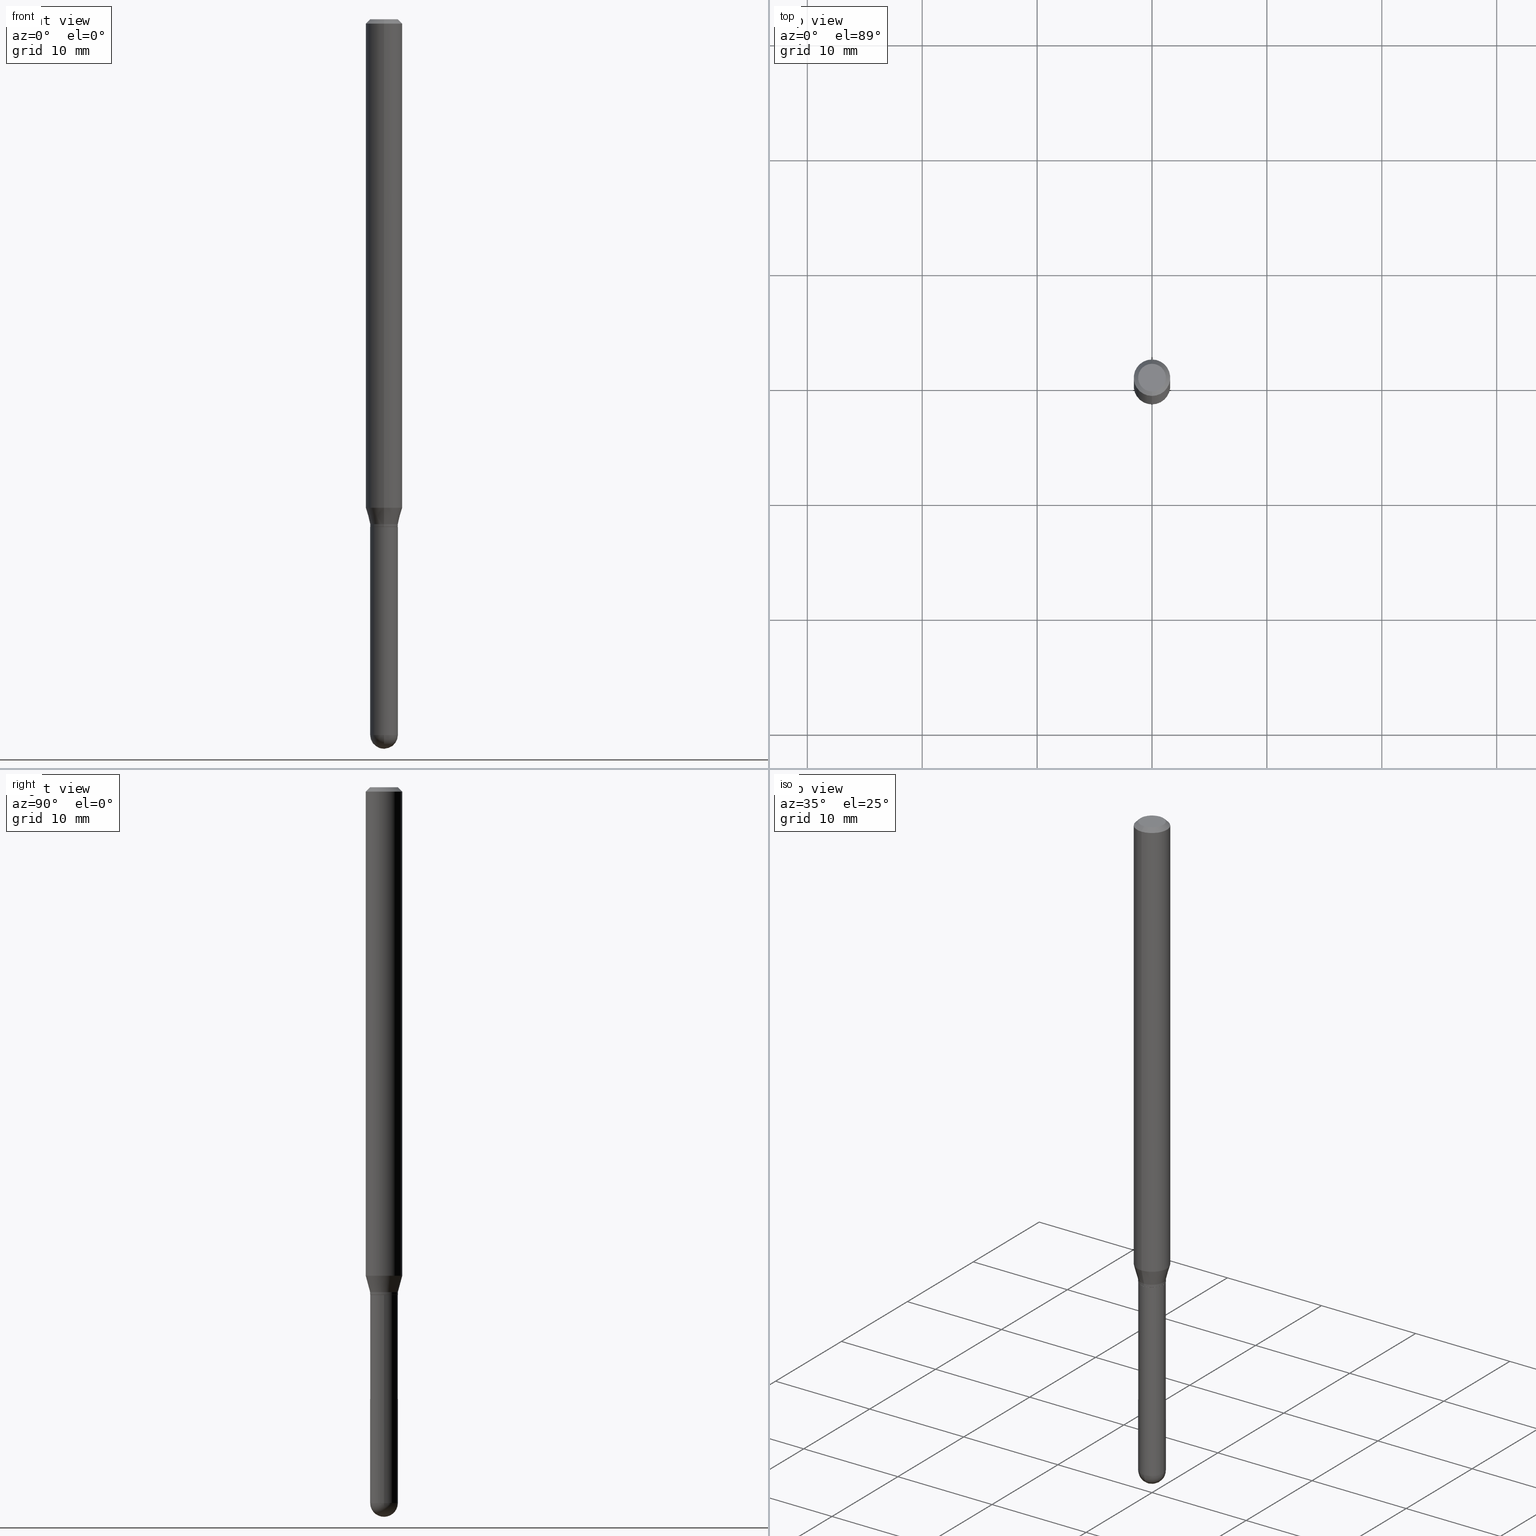
[diagram: canonical four-view strip — front | top / right | iso, engineering-drawing reading convention]
A machine part, canonical four-view strip (front | top / right | iso — engineering-drawing reading convention). The complete STEP part file that produces these views, byte-faithful:
ISO-10303-21;
HEADER;
FILE_DESCRIPTION (( 'STEP AP203' ),
    '1' );
FILE_NAME ('04504.STEP',
    '2024-03-08T20:13:57',
    ( '' ),
    ( '' ),
    'SwSTEP 2.0',
    'SolidWorks 2023',
    '' );
FILE_SCHEMA (( 'CONFIG_CONTROL_DESIGN' ));
ENDSEC;

DATA;
#1 = EDGE_LOOP ( 'NONE', ( #216, #71, #282, #239 ) ) ;
#2 = DIRECTION ( 'NONE',  ( -2.445468806185136597E-29, 3.491481338843145583E-15, 1.000000000000000000 ) ) ;
#3 = APPROVAL ( #443, 'UNSPECIFIED' ) ;
#4 = DIRECTION ( 'NONE',  ( -6.982962677686265133E-15, -1.000000000000000000, 5.751258934030070759E-15 ) ) ;
#5 = EDGE_LOOP ( 'NONE', ( #235, #9, #466, #125 ) ) ;
#6 = DIRECTION ( 'NONE',  ( 0.000000000000000000, 0.000000000000000000, 1.000000000000000000 ) ) ;
#7 = VECTOR ( 'NONE', #230, 39.37007874015748143 ) ;
#8 = ORIENTED_EDGE ( 'NONE', *, *, #407, .F. ) ;
#9 = ORIENTED_EDGE ( 'NONE', *, *, #79, .T. ) ;
#10 = ORIENTED_EDGE ( 'NONE', *, *, #421, .F. ) ;
#11 =( NAMED_UNIT ( * ) SI_UNIT ( $, .STERADIAN. ) SOLID_ANGLE_UNIT ( ) );
#12 = DIRECTION ( 'NONE',  ( -2.445468806185136597E-29, 3.491481338843145583E-15, 1.000000000000000000 ) ) ;
#13 = AXIS2_PLACEMENT_3D ( 'NONE', #234, #268, #419 ) ;
#14 = DIRECTION ( 'NONE',  ( 2.438088387897960049E-29, -3.491481338843145188E-15, -1.000000000000000000 ) ) ;
#15 = ORIENTED_EDGE ( 'NONE', *, *, #99, .F. ) ;
#16 = DIRECTION ( 'NONE',  ( -2.445468806185136597E-29, 3.491481338843145583E-15, 1.000000000000000000 ) ) ;
#17 = AXIS2_PLACEMENT_3D ( 'NONE', #379, #215, #417 ) ;
#18 = DATE_TIME_ROLE ( 'classification_date' ) ;
#19 = PERSON ( 'UNSPECIFIED', 'UNSPECIFIED', 'UNSPECIFIED', ('UNSPECIFIED'), ('UNSPECIFIED'), ('UNSPECIFIED') ) ;
#20 = PLANE ( 'NONE',  #346 ) ;
#21 = CC_DESIGN_DATE_AND_TIME_ASSIGNMENT ( #485, #18, ( #403 ) ) ;
#22 = FACE_OUTER_BOUND ( 'NONE', #501, .T. ) ;
#23 = CARTESIAN_POINT ( 'NONE',  ( -3.316907271900528910E-16, -0.04750000000000569045, -1.729999999999999760 ) ) ;
#24 = EDGE_LOOP ( 'NONE', ( #161, #253, #10, #8 ) ) ;
#25 = DIRECTION ( 'NONE',  ( -6.982962677686265922E-15, -1.000000000000000000, 3.483106191921935554E-15 ) ) ;
#26 = DIRECTION ( 'NONE',  ( 6.982962677686265922E-15, 1.000000000000000000, -5.751258934030028949E-15 ) ) ;
#27 = ORIENTED_EDGE ( 'NONE', *, *, #421, .T. ) ;
#28 = AXIS2_PLACEMENT_3D ( 'NONE', #75, #331, #342 ) ;
#29 = CARTESIAN_POINT ( 'NONE',  ( 0.000000000000000000, 0.000000000000000000, 0.000000000000000000 ) ) ;
#30 = ADVANCED_FACE ( 'NONE', ( #408 ), #445, .T. ) ;
#31 = CARTESIAN_POINT ( 'NONE',  ( 3.668196820181765152E-31, -5.237231157813794490E-17, -0.01500000000000006710 ) ) ;
#32 = VERTEX_POINT ( 'NONE', #52 ) ;
#33 = CARTESIAN_POINT ( 'NONE',  ( 0.04749999999999999362, -6.406868256777172111E-15, -1.740000000000000213 ) ) ;
#34 = DIRECTION ( 'NONE',  ( -2.445464546787832633E-29, 3.491487438542514721E-15, 1.000000000000000000 ) ) ;
#35 = VERTEX_POINT ( 'NONE', #370 ) ;
#36 = CARTESIAN_POINT ( 'NONE',  ( -3.281992458512119547E-16, -0.04700000000000607164, -1.739999999999999769 ) ) ;
#37 = VECTOR ( 'NONE', #333, 39.37007874015748854 ) ;
#38 = ORIENTED_EDGE ( 'NONE', *, *, #89, .T. ) ;
#39 = MANIFOLD_SOLID_BREP ( 'Body-Move/Copy2[1]', #311 ) ;
#40 = ADVANCED_FACE ( 'NONE', ( #450 ), #208, .T. ) ;
#41 = DIRECTION ( 'NONE',  ( -6.982962677686265922E-15, -1.000000000000000000, 3.491487438542514721E-15 ) ) ;
#42 = ORIENTED_EDGE ( 'NONE', *, *, #318, .F. ) ;
#43 = DATE_AND_TIME ( #201, #378 ) ;
#44 = EDGE_CURVE ( 'NONE', #35, #348, #289, .T. ) ;
#45 = ORIENTED_EDGE ( 'NONE', *, *, #453, .T. ) ;
#46 = APPROVAL_ROLE ( '' ) ;
#47 = AXIS2_PLACEMENT_3D ( 'NONE', #92, #132, #486 ) ;
#48 = EDGE_LOOP ( 'NONE', ( #319, #437, #334, #350 ) ) ;
#49 = COORDINATED_UNIVERSAL_TIME_OFFSET ( 5, 0, .BEHIND. ) ;
#50 = VERTEX_POINT ( 'NONE', #60 ) ;
#51 = MECHANICAL_CONTEXT ( 'NONE', #227, 'mechanical' ) ;
#52 = CARTESIAN_POINT ( 'NONE',  ( 3.316907271901575630E-16, 0.04749999999999143102, -2.452500000000000568 ) ) ;
#53 = CALENDAR_DATE ( 2024, 8, 3 ) ;
#54 = EDGE_CURVE ( 'NONE', #418, #156, #150, .T. ) ;
#55 = CONICAL_SURFACE ( 'NONE', #134, 0.06250000000000000000, 0.7853981633974483900 ) ;
#56 = CIRCLE ( 'NONE', #47, 0.04749999999999998668 ) ;
#57 = FACE_OUTER_BOUND ( 'NONE', #304, .T. ) ;
#58 = AXIS2_PLACEMENT_3D ( 'NONE', #469, #109, #306 ) ;
#59 = EDGE_CURVE ( 'NONE', #241, #375, #329, .T. ) ;
#60 = CARTESIAN_POINT ( 'NONE',  ( 3.357314426466885089E-16, 0.04699999999999391470, -1.740000000000000213 ) ) ;
#61 = ADVANCED_FACE ( 'NONE', ( #249 ), #152, .T. ) ;
#62 = FACE_OUTER_BOUND ( 'NONE', #144, .T. ) ;
#63 = DIRECTION ( 'NONE',  ( 1.000000000000000000, -6.982962677686280910E-15, 0.000000000000000000 ) ) ;
#64 = CIRCLE ( 'NONE', #240, 0.04749999999999999362 ) ;
#65 = VECTOR ( 'NONE', #221, 39.37007874015748143 ) ;
#66 = CARTESIAN_POINT ( 'NONE',  ( 0.000000000000000000, 0.000000000000000000, 0.000000000000000000 ) ) ;
#67 = ORIENTED_EDGE ( 'NONE', *, *, #275, .F. ) ;
#68 = EDGE_CURVE ( 'NONE', #315, #35, #96, .T. ) ;
#69 = DIRECTION ( 'NONE',  ( -4.937700262164674260E-15, -0.7071067811865632269, 0.7071067811865319186 ) ) ;
#70 = DIRECTION ( 'NONE',  ( -6.982962677686265133E-15, -1.000000000000000000, 3.491487438542514721E-15 ) ) ;
#71 = ORIENTED_EDGE ( 'NONE', *, *, #218, .F. ) ;
#72 = CONICAL_SURFACE ( 'NONE', #28, 0.04699999999999999317, 0.7853981633974739252 ) ;
#73 = CIRCLE ( 'NONE', #181, 0.04699999999999999317 ) ;
#74 = ADVANCED_FACE ( 'NONE', ( #410 ), #20, .F. ) ;
#75 = CARTESIAN_POINT ( 'NONE',  ( 4.255108311410829342E-29, -6.075188143063975551E-15, -1.739999999999999991 ) ) ;
#76 = ORIENTED_EDGE ( 'NONE', *, *, #458, .T. ) ;
#77 = DIRECTION ( 'NONE',  ( -6.982962677686266711E-15, -1.000000000000000000, 5.812442539711199378E-15 ) ) ;
#78 = LINE ( 'NONE', #229, #196 ) ;
#79 = EDGE_CURVE ( 'NONE', #50, #195, #490, .T. ) ;
#80 = CYLINDRICAL_SURFACE ( 'NONE', #404, 0.04750000000000000749 ) ;
#81 = CC_DESIGN_PERSON_AND_ORGANIZATION_ASSIGNMENT ( #364, #447, ( #403 ) ) ;
#82 = ORIENTED_EDGE ( 'NONE', *, *, #248, .F. ) ;
#83 =( LENGTH_UNIT ( ) NAMED_UNIT ( * ) SI_UNIT ( $, .METRE. ) );
#84 = CIRCLE ( 'NONE', #420, 0.04749999999999964667 ) ;
#85 = ORIENTED_EDGE ( 'NONE', *, *, #474, .T. ) ;
#86 = PERSON_AND_ORGANIZATION_ROLE ( 'design_supplier' ) ;
#87 = APPLICATION_CONTEXT ( 'configuration controlled 3d designs of mechanical parts and assemblies' ) ;
#88 = VERTEX_POINT ( 'NONE', #442 ) ;
#89 = EDGE_CURVE ( 'NONE', #354, #32, #56, .T. ) ;
#90 = ORIENTED_EDGE ( 'NONE', *, *, #142, .T. ) ;
#91 = ORIENTED_EDGE ( 'NONE', *, *, #373, .T. ) ;
#92 = CARTESIAN_POINT ( 'NONE',  ( 5.993450207295445537E-29, -8.568675055808764986E-15, -2.452500000000000124 ) ) ;
#93 = CALENDAR_DATE ( 2024, 8, 3 ) ;
#94 = DIRECTION ( 'NONE',  ( -7.105427357601001070E-15, -1.000000000000000000, 0.000000000000000000 ) ) ;
#95 = CC_DESIGN_DATE_AND_TIME_ASSIGNMENT ( #43, #194, ( #260 ) ) ;
#96 = CIRCLE ( 'NONE', #279, 0.06250000000000000000 ) ;
#97 = DIRECTION ( 'NONE',  ( -2.445464546787832633E-29, 3.491487438542514721E-15, 1.000000000000000000 ) ) ;
#98 = DIRECTION ( 'NONE',  ( 6.982962677686265922E-15, 1.000000000000000000, -3.491487438542514327E-15 ) ) ;
#99 = EDGE_CURVE ( 'NONE', #156, #32, #359, .T. ) ;
#100 = DIRECTION ( 'NONE',  ( 1.000000000000000000, -6.982962677686266711E-15, 4.876176775795934672E-29 ) ) ;
#101 = PERSON_AND_ORGANIZATION ( #19, #206 ) ;
#102 = CARTESIAN_POINT ( 'NONE',  ( 4.230653665942951296E-29, -6.040273268678550736E-15, -1.730000000000000204 ) ) ;
#103 = CIRCLE ( 'NONE', #167, 0.06250000000000000000 ) ;
#104 = VERTEX_POINT ( 'NONE', #203 ) ;
#105 = LOCAL_TIME ( 15, 13, 57.00000000000000000, #217 ) ;
#106 = CARTESIAN_POINT ( 'NONE',  ( 5.993450207295445537E-29, -8.568675055808764986E-15, -2.452500000000000124 ) ) ;
#107 = FACE_OUTER_BOUND ( 'NONE', #184, .T. ) ;
#108 = APPROVAL ( #323, 'UNSPECIFIED' ) ;
#109 = DIRECTION ( 'NONE',  ( -2.445464546787832633E-29, 3.491487438542514721E-15, 1.000000000000000000 ) ) ;
#110 = DIRECTION ( 'NONE',  ( 6.982962677686265922E-15, 1.000000000000000000, -3.483106191921935554E-15 ) ) ;
#111 = CARTESIAN_POINT ( 'NONE',  ( -3.316907271900951444E-16, -0.04749999999999964667, 1.658456533307682206E-16 ) ) ;
#112 = CARTESIAN_POINT ( 'NONE',  ( -3.375077994859875895E-16, -0.04750000000000855621, -2.452499999999999680 ) ) ;
#113 = CC_DESIGN_PERSON_AND_ORGANIZATION_ASSIGNMENT ( #435, #482, ( #260 ) ) ;
#114 = EDGE_LOOP ( 'NONE', ( #274, #191 ) ) ;
#115 = CARTESIAN_POINT ( 'NONE',  ( 0.000000000000000000, 0.000000000000000000, 0.000000000000000000 ) ) ;
#116 = ORIENTED_EDGE ( 'NONE', *, *, #434, .F. ) ;
#117 = AXIS2_PLACEMENT_3D ( 'NONE', #365, #16, #63 ) ;
#118 = VECTOR ( 'NONE', #265, 39.37007874015748143 ) ;
#119 = PERSON_AND_ORGANIZATION_ROLE ( 'creator' ) ;
#120 = LOCAL_TIME ( 15, 13, 57.00000000000000000, #326 ) ;
#121 = APPROVAL_PERSON_ORGANIZATION ( #130, #3, #46 ) ;
#122 = EDGE_LOOP ( 'NONE', ( #270, #438, #177, #146 ) ) ;
#123 = COORDINATED_UNIVERSAL_TIME_OFFSET ( 5, 0, .BEHIND. ) ;
#124 = EDGE_LOOP ( 'NONE', ( #309, #276, #162, #394 ) ) ;
#125 = ORIENTED_EDGE ( 'NONE', *, *, #474, .F. ) ;
#126 = DIRECTION ( 'NONE',  ( 1.000000000000000000, 0.000000000000000000, 0.000000000000000000 ) ) ;
#127 = AXIS2_PLACEMENT_3D ( 'NONE', #325, #97, #367 ) ;
#128 = CIRCLE ( 'NONE', #489, 0.04699999999999999317 ) ;
#129 = CARTESIAN_POINT ( 'NONE',  ( 3.339550858072895387E-16, 0.04699999999999391470, -1.740000000000000213 ) ) ;
#130 = PERSON_AND_ORGANIZATION ( #19, #206 ) ;
#131 = ADVANCED_FACE ( 'NONE', ( #62 ), #136, .T. ) ;
#132 = DIRECTION ( 'NONE',  ( 1.000000000000000000, -6.982962677686265922E-15, 4.883557194083112340E-29 ) ) ;
#133 = DIRECTION ( 'NONE',  ( -6.982962677686265133E-15, -1.000000000000000000, 5.751258934030070759E-15 ) ) ;
#134 = AXIS2_PLACEMENT_3D ( 'NONE', #255, #460, #186 ) ;
#135 = LOCAL_TIME ( 15, 13, 57.00000000000000000, #49 ) ;
#136 = CYLINDRICAL_SURFACE ( 'NONE', #452, 0.04749999999999964667 ) ;
#137 = PRODUCT_RELATED_PRODUCT_CATEGORY ( 'detail', '', ( #312 ) ) ;
#138 = DIRECTION ( 'NONE',  ( -6.982962677686265133E-15, -1.000000000000000000, 5.751258934030070759E-15 ) ) ;
#139 = DIRECTION ( 'NONE',  ( -2.445464546787832633E-29, 3.491487438542514327E-15, 1.000000000000000000 ) ) ;
#140 = CARTESIAN_POINT ( 'NONE',  ( 3.840629472727447874E-16, 0.04749999999999999362, -2.313455976474456035E-16 ) ) ;
#141 = CARTESIAN_POINT ( 'NONE',  ( -4.364351673553912750E-16, -0.06250000000000005551, -0.01499999999999984852 ) ) ;
#142 = EDGE_CURVE ( 'NONE', #354, #418, #393, .T. ) ;
#143 = CARTESIAN_POINT ( 'NONE',  ( 4.255115722762138620E-29, -6.075177529587074600E-15, -1.740000000000000213 ) ) ;
#144 = EDGE_LOOP ( 'NONE', ( #391, #424, #433, #67 ) ) ;
#145 = LINE ( 'NONE', #111, #336 ) ;
#146 = ORIENTED_EDGE ( 'NONE', *, *, #327, .F. ) ;
#147 = ADVANCED_FACE ( 'NONE', ( #57 ), #207, .F. ) ;
#148 = FACE_OUTER_BOUND ( 'NONE', #158, .T. ) ;
#149 = FACE_OUTER_BOUND ( 'NONE', #390, .T. ) ;
#150 = CIRCLE ( 'NONE', #117, 0.04750000000000000749 ) ;
#151 = VERTEX_POINT ( 'NONE', #328 ) ;
#152 = CONICAL_SURFACE ( 'NONE', #127, 0.04749999999999964667, 0.2617993877991505181 ) ;
#153 = AXIS2_PLACEMENT_3D ( 'NONE', #165, #6, #126 ) ;
#154 = CARTESIAN_POINT ( 'NONE',  ( 0.04750000000000000749, -3.316907271900977082E-16, 2.316183968503069432E-30 ) ) ;
#155 = FACE_OUTER_BOUND ( 'NONE', #198, .T. ) ;
#156 = VERTEX_POINT ( 'NONE', #406 ) ;
#157 = DIRECTION ( 'NONE',  ( -2.445468806185136597E-29, 3.491481338843145583E-15, 1.000000000000000000 ) ) ;
#158 = EDGE_LOOP ( 'NONE', ( #27, #388, #182, #259 ) ) ;
#159 = CIRCLE ( 'NONE', #446, 0.06250000000000000000 ) ;
#160 = APPROVAL_ROLE ( '' ) ;
#161 = ORIENTED_EDGE ( 'NONE', *, *, #59, .T. ) ;
#162 = ORIENTED_EDGE ( 'NONE', *, *, #407, .T. ) ;
#163 = EDGE_CURVE ( 'NONE', #457, #317, #64, .T. ) ;
#164 = ORIENTED_EDGE ( 'NONE', *, *, #434, .T. ) ;
#165 = CARTESIAN_POINT ( 'NONE',  ( 0.000000000000000000, 0.000000000000000000, 0.000000000000000000 ) ) ;
#166 = ADVANCED_FACE ( 'NONE', ( #149 ), #72, .T. ) ;
#167 = AXIS2_PLACEMENT_3D ( 'NONE', #237, #483, #412 ) ;
#168 = DIMENSIONAL_EXPONENTS ( 1.000000000000000000, 0.000000000000000000, 0.000000000000000000, 0.000000000000000000, 0.000000000000000000, 0.000000000000000000, 0.000000000000000000 ) ;
#169 = DIRECTION ( 'NONE',  ( 2.445464546787832633E-29, -3.491487438542514327E-15, -1.000000000000000000 ) ) ;
#170 = DIRECTION ( 'NONE',  ( -1.000000000000000000, 6.982962677686265922E-15, -4.876176775795935793E-29 ) ) ;
#171 = CC_DESIGN_PERSON_AND_ORGANIZATION_ASSIGNMENT ( #360, #119, ( #422 ) ) ;
#172 = CARTESIAN_POINT ( 'NONE',  ( 4.093754696892138762E-29, -5.844817140959110406E-15, -1.674019237886465783 ) ) ;
#173 = AXIS2_PLACEMENT_3D ( 'NONE', #444, #288, #94 ) ;
#174 = CARTESIAN_POINT ( 'NONE',  ( 5.993450207295445537E-29, -8.568675055808764986E-15, -2.452500000000000124 ) ) ;
#175 = DIRECTION ( 'NONE',  ( -2.445464546787832633E-29, 3.491487438542514721E-15, 1.000000000000000000 ) ) ;
#176 = FACE_OUTER_BOUND ( 'NONE', #48, .T. ) ;
#177 = ORIENTED_EDGE ( 'NONE', *, *, #44, .T. ) ;
#178 = ADVANCED_FACE ( 'NONE', ( #384 ), #498, .T. ) ;
#179 = AXIS2_PLACEMENT_3D ( 'NONE', #242, #12, #247 ) ;
#180 = CARTESIAN_POINT ( 'NONE',  ( 4.440892098501036369E-16, 0.06249999999999418521, -1.674019237886466227 ) ) ;
#181 = AXIS2_PLACEMENT_3D ( 'NONE', #301, #376, #77 ) ;
#182 = ORIENTED_EDGE ( 'NONE', *, *, #362, .F. ) ;
#183 = DIRECTION ( 'NONE',  ( 1.000000000000000000, -6.982962677686261977E-15, 0.000000000000000000 ) ) ;
#184 = EDGE_LOOP ( 'NONE', ( #436, #372, #471, #82 ) ) ;
#185 = DIRECTION ( 'NONE',  ( -6.982962677686265922E-15, -1.000000000000000000, 3.491487438542514721E-15 ) ) ;
#186 = DIRECTION ( 'NONE',  ( 6.982962677686265922E-15, 1.000000000000000000, -3.483106191921935554E-15 ) ) ;
#187 = DIRECTION ( 'NONE',  ( -2.445464546787832633E-29, 3.491487438542514721E-15, 1.000000000000000000 ) ) ;
#188 = ORIENTED_EDGE ( 'NONE', *, *, #492, .T. ) ;
#189 = AXIS2_PLACEMENT_3D ( 'NONE', #66, #175, #70 ) ;
#190 = CARTESIAN_POINT ( 'NONE',  ( 4.440892098500625669E-16, 0.06250000000000000000, -2.182179649089071701E-16 ) ) ;
#191 = ORIENTED_EDGE ( 'NONE', *, *, #163, .T. ) ;
#192 = CARTESIAN_POINT ( 'NONE',  ( 4.093754696892138762E-29, -5.844817140959110406E-15, -1.674019237886465783 ) ) ;
#193 = ORIENTED_EDGE ( 'NONE', *, *, #79, .F. ) ;
#194 = DATE_TIME_ROLE ( 'creation_date' ) ;
#195 = VERTEX_POINT ( 'NONE', #226 ) ;
#196 = VECTOR ( 'NONE', #456, 39.37007874015748143 ) ;
#197 = APPROVAL_PERSON_ORGANIZATION ( #101, #385, #297 ) ;
#198 = EDGE_LOOP ( 'NONE', ( #164, #91, #461, #220, #296 ) ) ;
#199 = ORIENTED_EDGE ( 'NONE', *, *, #142, .F. ) ;
#200 = ADVANCED_FACE ( 'NONE', ( #176 ), #300, .T. ) ;
#201 = CALENDAR_DATE ( 2024, 8, 3 ) ;
#202 = MANIFOLD_SOLID_BREP ( 'Body-Move/Copy2[2]', #231 ) ;
#203 = CARTESIAN_POINT ( 'NONE',  ( -3.316907271900519050E-16, -0.04750000000000561412, -1.739500000000000046 ) ) ;
#204 = APPROVAL_DATE_TIME ( #243, #3 ) ;
#205 = AXIS2_PLACEMENT_3D ( 'NONE', #338, #431, #4 ) ;
#206 = ORGANIZATION ( 'UNSPECIFIED', 'UNSPECIFIED', '' ) ;
#207 = PLANE ( 'NONE',  #294 ) ;
#208 = CYLINDRICAL_SURFACE ( 'NONE', #400, 0.04750000000000000749 ) ;
#209 = DIRECTION ( 'NONE',  ( -2.445464546787832633E-29, 3.491487438542514721E-15, 1.000000000000000000 ) ) ;
#210 = CARTESIAN_POINT ( 'NONE',  ( 4.255115722762138620E-29, -6.075177529587074600E-15, -1.740000000000000213 ) ) ;
#211 = AXIS2_PLACEMENT_3D ( 'NONE', #102, #252, #138 ) ;
#212 = AXIS2_PLACEMENT_3D ( 'NONE', #192, #347, #308 ) ;
#213 = DIRECTION ( 'NONE',  ( -2.445464546787832633E-29, 3.491487438542514721E-15, 1.000000000000000000 ) ) ;
#214 = DIRECTION ( 'NONE',  ( -2.445468806185136597E-29, 3.491481338843145583E-15, 1.000000000000000000 ) ) ;
#215 = DIRECTION ( 'NONE',  ( -2.445464546787832633E-29, 3.491487438542514721E-15, 1.000000000000000000 ) ) ;
#216 = ORIENTED_EDGE ( 'NONE', *, *, #307, .F. ) ;
#217 = COORDINATED_UNIVERSAL_TIME_OFFSET ( 5, 0, .BEHIND. ) ;
#218 = EDGE_CURVE ( 'NONE', #317, #457, #250, .T. ) ;
#219 = CARTESIAN_POINT ( 'NONE',  ( 3.375077994860450284E-16, 0.04749999999999964667, -1.658456533307682206E-16 ) ) ;
#220 = ORIENTED_EDGE ( 'NONE', *, *, #453, .F. ) ;
#221 = DIRECTION ( 'NONE',  ( -2.445464546787832633E-29, 3.491487438542514327E-15, 1.000000000000000000 ) ) ;
#222 = ADVANCED_FACE ( 'NONE', ( #107 ), #55, .T. ) ;
#223 = DIRECTION ( 'NONE',  ( -2.445464546787832633E-29, 3.491487438542514721E-15, 1.000000000000000000 ) ) ;
#224 = VECTOR ( 'NONE', #467, 39.37007874015748143 ) ;
#225 = EDGE_CURVE ( 'NONE', #375, #241, #84, .T. ) ;
#226 = CARTESIAN_POINT ( 'NONE',  ( 3.375077994860883172E-16, 0.04749999999999367922, -1.739500000000000712 ) ) ;
#227 = APPLICATION_CONTEXT ( 'configuration controlled 3d designs of mechanical parts and assemblies' ) ;
#228 = LINE ( 'NONE', #154, #7 ) ;
#229 = CARTESIAN_POINT ( 'NONE',  ( -4.287811248607203282E-16, -0.06250000000000005551, -0.01499999999999984852 ) ) ;
#230 = DIRECTION ( 'NONE',  ( -2.445468806185136877E-29, 3.491481338843145188E-15, 1.000000000000000000 ) ) ;
#231 = CLOSED_SHELL ( 'NONE', ( #131, #178, #222, #397, #256, #61, #392, #236, #74, #357, #166, #200 ) ) ;
#232 = ORIENTED_EDGE ( 'NONE', *, *, #269, .F. ) ;
#233 = VECTOR ( 'NONE', #69, 39.37007874015748143 ) ;
#234 = CARTESIAN_POINT ( 'NONE',  ( 5.997512247169047773E-29, -8.562857983512815004E-15, -2.452500000000000124 ) ) ;
#235 = ORIENTED_EDGE ( 'NONE', *, *, #405, .T. ) ;
#236 = ADVANCED_FACE ( 'NONE', ( #374 ), #479, .T. ) ;
#237 = CARTESIAN_POINT ( 'NONE',  ( 3.668196820181765152E-31, -5.237231157813794490E-17, -0.01500000000000006710 ) ) ;
#238 = ORIENTED_EDGE ( 'NONE', *, *, #54, .T. ) ;
#239 = ORIENTED_EDGE ( 'NONE', *, *, #327, .T. ) ;
#240 = AXIS2_PLACEMENT_3D ( 'NONE', #303, #34, #258 ) ;
#241 = VERTEX_POINT ( 'NONE', #23 ) ;
#242 = CARTESIAN_POINT ( 'NONE',  ( 5.997512247169047773E-29, -8.562857983512815004E-15, -2.452500000000000124 ) ) ;
#243 = DATE_AND_TIME ( #93, #120 ) ;
#244 = DIRECTION ( 'NONE',  ( -2.445468806185136597E-29, 3.491481338843145583E-15, 1.000000000000000000 ) ) ;
#245 = AXIS2_PLACEMENT_3D ( 'NONE', #210, #214, #478 ) ;
#246 = CARTESIAN_POINT ( 'NONE',  ( 4.230653665942951296E-29, -6.040273268678550736E-15, -1.730000000000000204 ) ) ;
#247 = DIRECTION ( 'NONE',  ( 1.000000000000000000, -6.982962677686280910E-15, 0.000000000000000000 ) ) ;
#248 = EDGE_CURVE ( 'NONE', #317, #504, #454, .T. ) ;
#249 = FACE_OUTER_BOUND ( 'NONE', #124, .T. ) ;
#250 = CIRCLE ( 'NONE', #17, 0.04749999999999999362 ) ;
#251 =( GEOMETRIC_REPRESENTATION_CONTEXT ( 3 ) GLOBAL_UNCERTAINTY_ASSIGNED_CONTEXT ( ( #341 ) ) GLOBAL_UNIT_ASSIGNED_CONTEXT ( ( #505, #425, #11 ) ) REPRESENTATION_CONTEXT ( 'NONE', 'WORKASPACE' ) );
#252 = DIRECTION ( 'NONE',  ( -2.445464546787832633E-29, 3.491487438542514721E-15, 1.000000000000000000 ) ) ;
#253 = ORIENTED_EDGE ( 'NONE', *, *, #284, .T. ) ;
#254 = CARTESIAN_POINT ( 'NONE',  ( 3.668196820181765152E-31, -5.237231157813794490E-17, -0.01500000000000006710 ) ) ;
#255 = CARTESIAN_POINT ( 'NONE',  ( 3.668196820181765152E-31, -5.237231157813794490E-17, -0.01500000000000006710 ) ) ;
#256 = ADVANCED_FACE ( 'NONE', ( #493 ), #387, .T. ) ;
#257 = LINE ( 'NONE', #190, #65 ) ;
#258 = DIRECTION ( 'NONE',  ( -6.982962677686266711E-15, -1.000000000000000000, 3.491487438542515115E-15 ) ) ;
#259 = ORIENTED_EDGE ( 'NONE', *, *, #44, .F. ) ;
#260 = PRODUCT_DEFINITION ( 'UNKNOWN', '', #422, #320 ) ;
#261 = CARTESIAN_POINT ( 'NONE',  ( 4.255108311410829342E-29, -6.075188143063975551E-15, -1.739999999999999991 ) ) ;
#262 = VECTOR ( 'NONE', #286, 39.37007874015748143 ) ;
#263 = CARTESIAN_POINT ( 'NONE',  ( 4.364351673553919652E-16, 0.06249999999999995143, -0.01500000000000028394 ) ) ;
#264 = CC_DESIGN_APPROVAL ( #385, ( #403 ) ) ;
#265 = DIRECTION ( 'NONE',  ( -2.445464546787832633E-29, 3.491487438542514327E-15, 1.000000000000000000 ) ) ;
#266 = CYLINDRICAL_SURFACE ( 'NONE', #272, 0.06250000000000000000 ) ;
#267 = VERTEX_POINT ( 'NONE', #423 ) ;
#268 = DIRECTION ( 'NONE',  ( -2.445468806185136597E-29, 3.491481338843145583E-15, 1.000000000000000000 ) ) ;
#269 = EDGE_CURVE ( 'NONE', #267, #475, #271, .T. ) ;
#270 = ORIENTED_EDGE ( 'NONE', *, *, #488, .F. ) ;
#271 = CIRCLE ( 'NONE', #369, 0.04749999999999999362 ) ;
#272 = AXIS2_PLACEMENT_3D ( 'NONE', #115, #187, #185 ) ;
#273 = PERSON_AND_ORGANIZATION ( #19, #206 ) ;
#274 = ORIENTED_EDGE ( 'NONE', *, *, #218, .T. ) ;
#275 = EDGE_CURVE ( 'NONE', #104, #241, #145, .T. ) ;
#276 = ORIENTED_EDGE ( 'NONE', *, *, #225, .T. ) ;
#277 = EDGE_CURVE ( 'NONE', #195, #375, #290, .T. ) ;
#278 = ORIENTED_EDGE ( 'NONE', *, *, #405, .F. ) ;
#279 = AXIS2_PLACEMENT_3D ( 'NONE', #172, #209, #487 ) ;
#280 = APPLICATION_PROTOCOL_DEFINITION ( 'international standard', 'config_control_design', 1994, #87 ) ;
#281 = LOCAL_TIME ( 15, 13, 57.00000000000000000, #305 ) ;
#282 = ORIENTED_EDGE ( 'NONE', *, *, #248, .T. ) ;
#283 = PERSON_AND_ORGANIZATION ( #19, #206 ) ;
#284 = EDGE_CURVE ( 'NONE', #375, #315, #371, .T. ) ;
#285 = DIRECTION ( 'NONE',  ( -2.445464546787832633E-29, 3.491487438542514721E-15, 1.000000000000000000 ) ) ;
#286 = DIRECTION ( 'NONE',  ( 5.024295867788190974E-15, 0.7071067811865681119, 0.7071067811865270336 ) ) ;
#287 = CIRCLE ( 'NONE', #58, 0.04749999999999964667 ) ;
#288 = DIRECTION ( 'NONE',  ( -1.000000000000000000, 7.105427357601001070E-15, -4.926315508542082329E-29 ) ) ;
#289 = LINE ( 'NONE', #321, #368 ) ;
#290 = LINE ( 'NONE', #219, #118 ) ;
#291 = SECURITY_CLASSIFICATION_LEVEL ( 'unclassified' ) ;
#292 = PRODUCT_DEFINITION_SHAPE ( 'NONE', 'NONE',  #260 ) ;
#293 = DIRECTION ( 'NONE',  ( -6.982962677686265922E-15, -1.000000000000000000, 3.491487438542514327E-15 ) ) ;
#294 = AXIS2_PLACEMENT_3D ( 'NONE', #363, #14, #170 ) ;
#295 = SPHERICAL_SURFACE ( 'NONE', #322, 0.04749999999999998668 ) ;
#296 = ORIENTED_EDGE ( 'NONE', *, *, #99, .T. ) ;
#297 = APPROVAL_ROLE ( '' ) ;
#298 = DIRECTION ( 'NONE',  ( -2.445464546787832633E-29, 3.491487438542514327E-15, 1.000000000000000000 ) ) ;
#299 = FACE_OUTER_BOUND ( 'NONE', #122, .T. ) ;
#300 = CYLINDRICAL_SURFACE ( 'NONE', #189, 0.04749999999999964667 ) ;
#301 = CARTESIAN_POINT ( 'NONE',  ( 4.255108311410829342E-29, -6.075188143063975551E-15, -1.739999999999999991 ) ) ;
#302 = VECTOR ( 'NONE', #344, 39.37007874015748143 ) ;
#303 = CARTESIAN_POINT ( 'NONE',  ( 1.601777916430087703E-45, -2.286922328069090659E-31, -6.549994431667617493E-17 ) ) ;
#304 = EDGE_LOOP ( 'NONE', ( #398, #352 ) ) ;
#305 = COORDINATED_UNIVERSAL_TIME_OFFSET ( 5, 0, .BEHIND. ) ;
#306 = DIRECTION ( 'NONE',  ( -6.982962677686265133E-15, -1.000000000000000000, 5.751258934030070759E-15 ) ) ;
#307 = EDGE_CURVE ( 'NONE', #457, #348, #78, .T. ) ;
#308 = DIRECTION ( 'NONE',  ( -6.982962677686265922E-15, -1.000000000000000000, 4.370956789862821150E-15 ) ) ;
#309 = ORIENTED_EDGE ( 'NONE', *, *, #284, .F. ) ;
#310 = DIRECTION ( 'NONE',  ( -6.982962677686266711E-15, -1.000000000000000000, 5.812442539711199378E-15 ) ) ;
#311 = CLOSED_SHELL ( 'NONE', ( #448, #30, #147, #314, #40 ) ) ;
#312 = PRODUCT ( '04504', '04504', '', ( #51 ) ) ;
#313 = AXIS2_PLACEMENT_3D ( 'NONE', #494, #139, #293 ) ;
#314 = ADVANCED_FACE ( 'NONE', ( #495 ), #295, .T. ) ;
#315 = VERTEX_POINT ( 'NONE', #180 ) ;
#316 = APPROVAL_DATE_TIME ( #440, #108 ) ;
#317 = VERTEX_POINT ( 'NONE', #140 ) ;
#318 = EDGE_CURVE ( 'NONE', #195, #104, #377, .T. ) ;
#319 = ORIENTED_EDGE ( 'NONE', *, *, #277, .F. ) ;
#320 = DESIGN_CONTEXT ( 'detailed design', #87, 'design' ) ;
#321 = CARTESIAN_POINT ( 'NONE',  ( -4.364351673553916201E-16, -0.06250000000000000000, 2.182179649089071701E-16 ) ) ;
#322 = AXIS2_PLACEMENT_3D ( 'NONE', #106, #415, #26 ) ;
#323 = APPROVAL_STATUS ( 'not_yet_approved' ) ;
#324 = CC_DESIGN_APPROVAL ( #3, ( #422 ) ) ;
#325 = CARTESIAN_POINT ( 'NONE',  ( 4.230653665942951296E-29, -6.040273268678550736E-15, -1.730000000000000204 ) ) ;
#326 = COORDINATED_UNIVERSAL_TIME_OFFSET ( 5, 0, .BEHIND. ) ;
#327 = EDGE_CURVE ( 'NONE', #504, #348, #103, .T. ) ;
#328 = CARTESIAN_POINT ( 'NONE',  ( -0.04750000000000000749, -6.981509957063897703E-15, -2.452500000000000124 ) ) ;
#329 = CIRCLE ( 'NONE', #402, 0.04749999999999964667 ) ;
#330 = DIRECTION ( 'NONE',  ( -1.000000000000000000, 6.982962677686265922E-15, -4.883557194083112340E-29 ) ) ;
#331 = DIRECTION ( 'NONE',  ( -2.445464546787832633E-29, 3.491487438542514721E-15, 1.000000000000000000 ) ) ;
#332 = PLANE ( 'NONE',  #313 ) ;
#333 = DIRECTION ( 'NONE',  ( 1.839019923739601893E-15, 0.2588190451025252359, 0.9659258262890670910 ) ) ;
#334 = ORIENTED_EDGE ( 'NONE', *, *, #275, .T. ) ;
#335 = AXIS2_PLACEMENT_3D ( 'NONE', #174, #330, #449 ) ;
#336 = VECTOR ( 'NONE', #298, 39.37007874015748143 ) ;
#337 = AXIS2_PLACEMENT_3D ( 'NONE', #29, #465, #41 ) ;
#338 = CARTESIAN_POINT ( 'NONE',  ( 4.253885579137435552E-29, -6.073442399344706559E-15, -1.739500000000000490 ) ) ;
#339 = ORIENTED_EDGE ( 'NONE', *, *, #54, .F. ) ;
#340 = CARTESIAN_POINT ( 'NONE',  ( -3.316907271900528910E-16, -0.04750000000000569045, -1.729999999999999760 ) ) ;
#341 = UNCERTAINTY_MEASURE_WITH_UNIT (LENGTH_MEASURE( 1.000000000000000082E-05 ), #505, 'distance_accuracy_value', 'NONE');
#342 = DIRECTION ( 'NONE',  ( -6.982962677686266711E-15, -1.000000000000000000, 5.812442539711199378E-15 ) ) ;
#343 = CARTESIAN_POINT ( 'NONE',  ( -3.773273898774340269E-16, -0.04749999999999999362, 1.003457090140932783E-16 ) ) ;
#344 = DIRECTION ( 'NONE',  ( 4.937700262164548042E-15, 0.7071067811865451302, -0.7071067811865499042 ) ) ;
#345 = DIRECTION ( 'NONE',  ( 1.000000000000000000, -6.982962677686280910E-15, 0.000000000000000000 ) ) ;
#346 = AXIS2_PLACEMENT_3D ( 'NONE', #480, #169, #98 ) ;
#347 = DIRECTION ( 'NONE',  ( -2.445464546787832633E-29, 3.491487438542514721E-15, 1.000000000000000000 ) ) ;
#348 = VERTEX_POINT ( 'NONE', #141 ) ;
#349 = CARTESIAN_POINT ( 'NONE',  ( 5.997512247169047773E-29, -8.562857983512815004E-15, -2.452500000000000124 ) ) ;
#350 = ORIENTED_EDGE ( 'NONE', *, *, #225, .F. ) ;
#351 = EDGE_CURVE ( 'NONE', #475, #267, #470, .T. ) ;
#352 = ORIENTED_EDGE ( 'NONE', *, *, #269, .T. ) ;
#353 = APPLICATION_PROTOCOL_DEFINITION ( 'international standard', 'config_control_design', 1994, #227 ) ;
#354 = VERTEX_POINT ( 'NONE', #396 ) ;
#355 = PERSON_AND_ORGANIZATION ( #19, #206 ) ;
#356 = EDGE_LOOP ( 'NONE', ( #496, #90, #472, #116 ) ) ;
#357 = ADVANCED_FACE ( 'NONE', ( #22 ), #332, .F. ) ;
#358 = CARTESIAN_POINT ( 'NONE',  ( 0.000000000000000000, 0.000000000000000000, 0.000000000000000000 ) ) ;
#359 = CIRCLE ( 'NONE', #179, 0.04750000000000000749 ) ;
#360 = PERSON_AND_ORGANIZATION ( #19, #206 ) ;
#361 = APPROVAL_PERSON_ORGANIZATION ( #283, #108, #160 ) ;
#362 = EDGE_CURVE ( 'NONE', #348, #504, #159, .T. ) ;
#363 = CARTESIAN_POINT ( 'NONE',  ( 3.316907271901401095E-16, 0.04749999999999392208, -1.740000000000000657 ) ) ;
#364 = PERSON_AND_ORGANIZATION ( #19, #206 ) ;
#365 = CARTESIAN_POINT ( 'NONE',  ( 5.997512247169047773E-29, -8.562857983512815004E-15, -2.452500000000000124 ) ) ;
#366 = CC_DESIGN_PERSON_AND_ORGANIZATION_ASSIGNMENT ( #273, #86, ( #422 ) ) ;
#367 = DIRECTION ( 'NONE',  ( -6.982962677686265133E-15, -1.000000000000000000, 5.751258934030070759E-15 ) ) ;
#368 = VECTOR ( 'NONE', #399, 39.37007874015748143 ) ;
#369 = AXIS2_PLACEMENT_3D ( 'NONE', #143, #506, #183 ) ;
#370 = CARTESIAN_POINT ( 'NONE',  ( -4.364351673553505007E-16, -0.06250000000000581479, -1.674019237886465561 ) ) ;
#371 = LINE ( 'NONE', #426, #37 ) ;
#372 = ORIENTED_EDGE ( 'NONE', *, *, #307, .T. ) ;
#373 = EDGE_CURVE ( 'NONE', #151, #267, #386, .T. ) ;
#374 = FACE_OUTER_BOUND ( 'NONE', #1, .T. ) ;
#375 = VERTEX_POINT ( 'NONE', #416 ) ;
#376 = DIRECTION ( 'NONE',  ( -2.445464546787832633E-29, 3.491487438542514721E-15, 1.000000000000000000 ) ) ;
#377 = CIRCLE ( 'NONE', #205, 0.04749999999999964667 ) ;
#378 = LOCAL_TIME ( 15, 13, 57.00000000000000000, #123 ) ;
#379 = CARTESIAN_POINT ( 'NONE',  ( 1.601777916430087703E-45, -2.286922328069090659E-31, -6.549994431667617493E-17 ) ) ;
#380 = LENGTH_MEASURE_WITH_UNIT ( LENGTH_MEASURE( 0.02539999999999999897 ), #83 );
#381 = DIRECTION ( 'NONE',  ( -6.982962677686266711E-15, -1.000000000000000000, 5.812442539711199378E-15 ) ) ;
#382 = EDGE_LOOP ( 'NONE', ( #507, #76, #238, #45, #232 ) ) ;
#383 = LINE ( 'NONE', #340, #481 ) ;
#384 = FACE_OUTER_BOUND ( 'NONE', #5, .T. ) ;
#385 = APPROVAL ( #491, 'UNSPECIFIED' ) ;
#386 = LINE ( 'NONE', #427, #224 ) ;
#387 = CONICAL_SURFACE ( 'NONE', #211, 0.04749999999999964667, 0.2617993877991505181 ) ;
#388 = ORIENTED_EDGE ( 'NONE', *, *, #488, .T. ) ;
#389 = CYLINDRICAL_SURFACE ( 'NONE', #337, 0.06250000000000000000 ) ;
#390 = EDGE_LOOP ( 'NONE', ( #193, #188, #85, #42 ) ) ;
#391 = ORIENTED_EDGE ( 'NONE', *, *, #477, .T. ) ;
#392 = ADVANCED_FACE ( 'NONE', ( #299 ), #266, .T. ) ;
#393 = CIRCLE ( 'NONE', #173, 0.04749999999999998668 ) ;
#394 = ORIENTED_EDGE ( 'NONE', *, *, #68, .F. ) ;
#395 = AXIS2_PLACEMENT_3D ( 'NONE', #349, #157, #345 ) ;
#396 = CARTESIAN_POINT ( 'NONE',  ( 6.111640995526040935E-29, -8.731611883255839934E-15, -2.500000000000000000 ) ) ;
#397 = ADVANCED_FACE ( 'NONE', ( #148 ), #389, .T. ) ;
#398 = ORIENTED_EDGE ( 'NONE', *, *, #351, .T. ) ;
#399 = DIRECTION ( 'NONE',  ( -2.445464546787832633E-29, 3.491487438542514327E-15, 1.000000000000000000 ) ) ;
#400 = AXIS2_PLACEMENT_3D ( 'NONE', #484, #244, #100 ) ;
#401 = DIRECTION ( 'NONE',  ( -6.982962677686265133E-15, -1.000000000000000000, 3.491487438542514721E-15 ) ) ;
#402 = AXIS2_PLACEMENT_3D ( 'NONE', #246, #213, #133 ) ;
#403 = SECURITY_CLASSIFICATION ( '', '', #291 ) ;
#404 = AXIS2_PLACEMENT_3D ( 'NONE', #509, #2, #512 ) ;
#405 = EDGE_CURVE ( 'NONE', #88, #50, #128, .T. ) ;
#406 = CARTESIAN_POINT ( 'NONE',  ( 0.04750000000000000749, -7.650708483740042707E-15, -2.452500000000000124 ) ) ;
#407 = EDGE_CURVE ( 'NONE', #241, #35, #383, .T. ) ;
#408 = FACE_OUTER_BOUND ( 'NONE', #356, .T. ) ;
#409 = CALENDAR_DATE ( 2024, 8, 3 ) ;
#410 = FACE_OUTER_BOUND ( 'NONE', #114, .T. ) ;
#411 = AXIS2_PLACEMENT_3D ( 'NONE', #500, #223, #381 ) ;
#412 = DIRECTION ( 'NONE',  ( -6.982962677686265922E-15, -1.000000000000000000, 3.483106191921935554E-15 ) ) ;
#413 = CARTESIAN_POINT ( 'NONE',  ( 4.230653665942951296E-29, -6.040273268678550736E-15, -1.730000000000000204 ) ) ;
#414 = DIRECTION ( 'NONE',  ( -2.445464546787832633E-29, 3.491487438542514721E-15, 1.000000000000000000 ) ) ;
#415 = DIRECTION ( 'NONE',  ( -1.000000000000000000, 6.982962677686265922E-15, -4.883557194083112340E-29 ) ) ;
#416 = CARTESIAN_POINT ( 'NONE',  ( 3.907985046680954347E-16, 0.04749999999999360289, -1.730000000000000426 ) ) ;
#417 = DIRECTION ( 'NONE',  ( -6.982962677686266711E-15, -1.000000000000000000, 3.491487438542515115E-15 ) ) ;
#418 = VERTEX_POINT ( 'NONE', #112 ) ;
#419 = DIRECTION ( 'NONE',  ( 1.000000000000000000, -6.982962677686280910E-15, 0.000000000000000000 ) ) ;
#420 = AXIS2_PLACEMENT_3D ( 'NONE', #413, #451, #503 ) ;
#421 = EDGE_CURVE ( 'NONE', #35, #315, #439, .T. ) ;
#422 = PRODUCT_DEFINITION_FORMATION_WITH_SPECIFIED_SOURCE ( 'ANY', '', #312, .NOT_KNOWN. ) ;
#423 = CARTESIAN_POINT ( 'NONE',  ( -0.04749999999999999362, -6.981509957063897703E-15, -1.740000000000000213 ) ) ;
#424 = ORIENTED_EDGE ( 'NONE', *, *, #277, .T. ) ;
#425 =( NAMED_UNIT ( * ) PLANE_ANGLE_UNIT ( ) SI_UNIT ( $, .RADIAN. ) );
#426 = CARTESIAN_POINT ( 'NONE',  ( 3.375077994860872818E-16, 0.04749999999999360289, -1.730000000000000426 ) ) ;
#427 = CARTESIAN_POINT ( 'NONE',  ( -0.04750000000000000749, 3.375077994860476415E-16, -2.336494167871080260E-30 ) ) ;
#428 = ORIENTED_EDGE ( 'NONE', *, *, #492, .F. ) ;
#429 = CARTESIAN_POINT ( 'NONE',  ( 4.440892098501038342E-16, 0.06249999999999995143, -0.01500000000000028394 ) ) ;
#430 = AXIS2_PLACEMENT_3D ( 'NONE', #31, #464, #110 ) ;
#431 = DIRECTION ( 'NONE',  ( -2.445464546787832633E-29, 3.491487438542514721E-15, 1.000000000000000000 ) ) ;
#432 = CIRCLE ( 'NONE', #395, 0.04750000000000000749 ) ;
#433 = ORIENTED_EDGE ( 'NONE', *, *, #59, .F. ) ;
#434 = EDGE_CURVE ( 'NONE', #32, #151, #432, .T. ) ;
#435 = PERSON_AND_ORGANIZATION ( #19, #206 ) ;
#436 = ORIENTED_EDGE ( 'NONE', *, *, #163, .F. ) ;
#437 = ORIENTED_EDGE ( 'NONE', *, *, #318, .T. ) ;
#438 = ORIENTED_EDGE ( 'NONE', *, *, #68, .T. ) ;
#439 = CIRCLE ( 'NONE', #212, 0.06250000000000000000 ) ;
#440 = DATE_AND_TIME ( #53, #135 ) ;
#441 = CC_DESIGN_PERSON_AND_ORGANIZATION_ASSIGNMENT ( #355, #476, ( #312 ) ) ;
#442 = CARTESIAN_POINT ( 'NONE',  ( -3.281992458512119547E-16, -0.04700000000000607164, -1.739999999999999769 ) ) ;
#443 = APPROVAL_STATUS ( 'not_yet_approved' ) ;
#444 = CARTESIAN_POINT ( 'NONE',  ( 5.993450207295445537E-29, -8.568675055808764986E-15, -2.452500000000000124 ) ) ;
#445 = SPHERICAL_SURFACE ( 'NONE', #335, 0.04749999999999998668 ) ;
#446 = AXIS2_PLACEMENT_3D ( 'NONE', #254, #414, #25 ) ;
#447 = PERSON_AND_ORGANIZATION_ROLE ( 'classification_officer' ) ;
#448 = ADVANCED_FACE ( 'NONE', ( #155 ), #80, .T. ) ;
#449 = DIRECTION ( 'NONE',  ( 6.982962677686265922E-15, 1.000000000000000000, -5.751258934030028949E-15 ) ) ;
#450 = FACE_OUTER_BOUND ( 'NONE', #382, .T. ) ;
#451 = DIRECTION ( 'NONE',  ( -2.445464546787832633E-29, 3.491487438542514721E-15, 1.000000000000000000 ) ) ;
#452 = AXIS2_PLACEMENT_3D ( 'NONE', #358, #285, #401 ) ;
#453 = EDGE_CURVE ( 'NONE', #156, #475, #228, .T. ) ;
#454 = LINE ( 'NONE', #263, #302 ) ;
#455 = CALENDAR_DATE ( 2024, 8, 3 ) ;
#456 = DIRECTION ( 'NONE',  ( -4.851104656540964275E-15, -0.7071067811865500152, -0.7071067811865450192 ) ) ;
#457 = VERTEX_POINT ( 'NONE', #343 ) ;
#458 = EDGE_CURVE ( 'NONE', #151, #418, #463, .T. ) ;
#459 = DIRECTION ( 'NONE',  ( -2.445464546787832633E-29, 3.491487438542514721E-15, 1.000000000000000000 ) ) ;
#460 = DIRECTION ( 'NONE',  ( 2.445464546787832633E-29, -3.491487438542514721E-15, -1.000000000000000000 ) ) ;
#461 = ORIENTED_EDGE ( 'NONE', *, *, #351, .F. ) ;
#462 = DIRECTION ( 'NONE',  ( -1.807323732225331717E-15, -0.2588190451025184080, 0.9659258262890689783 ) ) ;
#463 = CIRCLE ( 'NONE', #13, 0.04750000000000000749 ) ;
#464 = DIRECTION ( 'NONE',  ( 2.445464546787832633E-29, -3.491487438542514721E-15, -1.000000000000000000 ) ) ;
#465 = DIRECTION ( 'NONE',  ( -2.445464546787832633E-29, 3.491487438542514721E-15, 1.000000000000000000 ) ) ;
#466 = ORIENTED_EDGE ( 'NONE', *, *, #477, .F. ) ;
#467 = DIRECTION ( 'NONE',  ( -2.445468806185136877E-29, 3.491481338843145188E-15, 1.000000000000000000 ) ) ;
#468 = EDGE_LOOP ( 'NONE', ( #199, #38, #15, #339 ) ) ;
#469 = CARTESIAN_POINT ( 'NONE',  ( 4.253885579137435552E-29, -6.073442399344706559E-15, -1.739500000000000490 ) ) ;
#470 = CIRCLE ( 'NONE', #245, 0.04749999999999999362 ) ;
#471 = ORIENTED_EDGE ( 'NONE', *, *, #362, .T. ) ;
#472 = ORIENTED_EDGE ( 'NONE', *, *, #458, .F. ) ;
#473 = ADVANCED_BREP_SHAPE_REPRESENTATION ( '04504', ( #39, #202, #153 ), #251 ) ;
#474 = EDGE_CURVE ( 'NONE', #88, #104, #502, .T. ) ;
#475 = VERTEX_POINT ( 'NONE', #33 ) ;
#476 = PERSON_AND_ORGANIZATION_ROLE ( 'design_owner' ) ;
#477 = EDGE_CURVE ( 'NONE', #104, #195, #287, .T. ) ;
#478 = DIRECTION ( 'NONE',  ( 1.000000000000000000, -6.982962677686261977E-15, 0.000000000000000000 ) ) ;
#479 = CONICAL_SURFACE ( 'NONE', #430, 0.06250000000000000000, 0.7853981633974483900 ) ;
#480 = CARTESIAN_POINT ( 'NONE',  ( 3.316907271900976096E-16, 0.04749999999999999362, -1.985956254891075283E-16 ) ) ;
#481 = VECTOR ( 'NONE', #462, 39.37007874015748854 ) ;
#482 = PERSON_AND_ORGANIZATION_ROLE ( 'creator' ) ;
#483 = DIRECTION ( 'NONE',  ( -2.445464546787832633E-29, 3.491487438542514721E-15, 1.000000000000000000 ) ) ;
#484 = CARTESIAN_POINT ( 'NONE',  ( 0.000000000000000000, 0.000000000000000000, 0.000000000000000000 ) ) ;
#485 = DATE_AND_TIME ( #409, #105 ) ;
#486 = DIRECTION ( 'NONE',  ( 6.982962677686265133E-15, 1.000000000000000000, 0.000000000000000000 ) ) ;
#487 = DIRECTION ( 'NONE',  ( -6.982962677686265922E-15, -1.000000000000000000, 4.370956789862821150E-15 ) ) ;
#488 = EDGE_CURVE ( 'NONE', #315, #504, #257, .T. ) ;
#489 = AXIS2_PLACEMENT_3D ( 'NONE', #261, #459, #310 ) ;
#490 = LINE ( 'NONE', #129, #262 ) ;
#491 = APPROVAL_STATUS ( 'not_yet_approved' ) ;
#492 = EDGE_CURVE ( 'NONE', #50, #88, #73, .T. ) ;
#493 = FACE_OUTER_BOUND ( 'NONE', #24, .T. ) ;
#494 = CARTESIAN_POINT ( 'NONE',  ( 4.255108311410829342E-29, -6.075188143063975551E-15, -1.739999999999999991 ) ) ;
#495 = FACE_OUTER_BOUND ( 'NONE', #468, .T. ) ;
#496 = ORIENTED_EDGE ( 'NONE', *, *, #89, .F. ) ;
#497 = APPROVAL_DATE_TIME ( #511, #385 ) ;
#498 = CONICAL_SURFACE ( 'NONE', #411, 0.04699999999999999317, 0.7853981633974739252 ) ;
#499 = CC_DESIGN_APPROVAL ( #108, ( #260 ) ) ;
#500 = CARTESIAN_POINT ( 'NONE',  ( 4.255108311410829342E-29, -6.075188143063975551E-15, -1.739999999999999991 ) ) ;
#501 = EDGE_LOOP ( 'NONE', ( #278, #428 ) ) ;
#502 = LINE ( 'NONE', #36, #233 ) ;
#503 = DIRECTION ( 'NONE',  ( -6.982962677686265133E-15, -1.000000000000000000, 5.751258934030070759E-15 ) ) ;
#504 = VERTEX_POINT ( 'NONE', #429 ) ;
#505 =( CONVERSION_BASED_UNIT ( 'INCH', #380 ) LENGTH_UNIT ( ) NAMED_UNIT ( #168 ) );
#506 = DIRECTION ( 'NONE',  ( -2.445468806185136597E-29, 3.491481338843145583E-15, 1.000000000000000000 ) ) ;
#507 = ORIENTED_EDGE ( 'NONE', *, *, #373, .F. ) ;
#508 = SHAPE_DEFINITION_REPRESENTATION ( #292, #473 ) ;
#509 = CARTESIAN_POINT ( 'NONE',  ( 0.000000000000000000, 0.000000000000000000, 0.000000000000000000 ) ) ;
#510 = CC_DESIGN_SECURITY_CLASSIFICATION ( #403, ( #422 ) ) ;
#511 = DATE_AND_TIME ( #455, #281 ) ;
#512 = DIRECTION ( 'NONE',  ( 1.000000000000000000, -6.982962677686266711E-15, 4.876176775795934672E-29 ) ) ;
ENDSEC;
END-ISO-10303-21;
